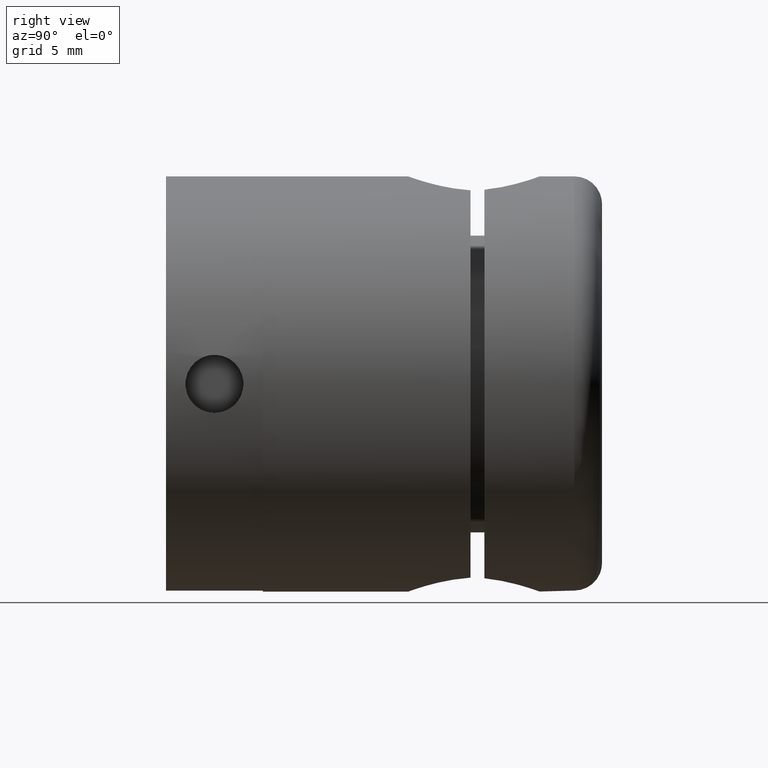
[diagram: clean part render]
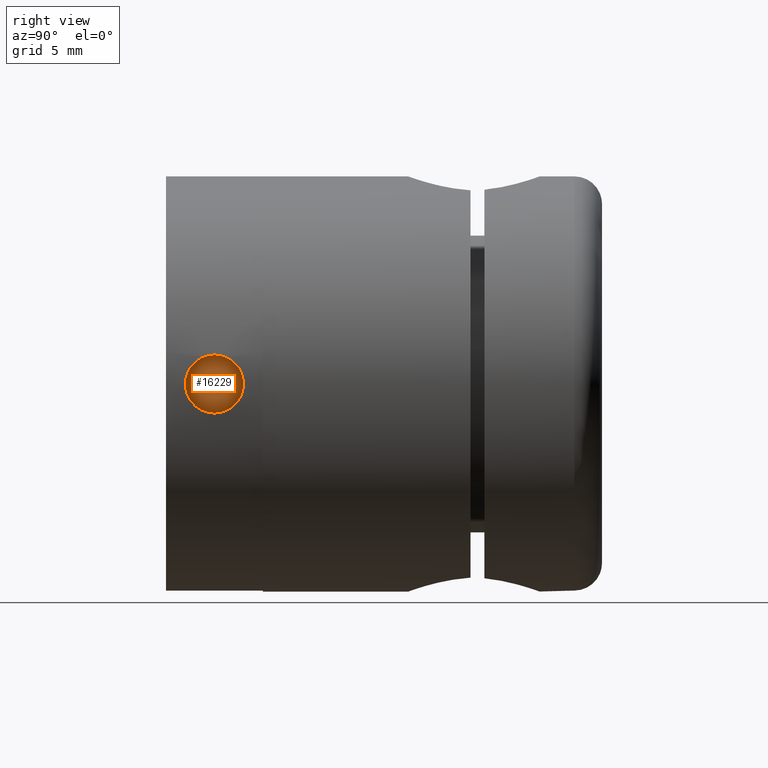
[diagram: same view with one face highlighted and labeled with its STEP entity id]
A machine part, right view. The second image highlights one B-rep face of the part: STEP entity #16229.
In plain terms, the highlighted planar face has unit normal (1, 0, 0).
Its self-contained STEP definition (entity closure, byte-faithful):
#418 = VERTEX_POINT ( 'NONE', #5107 ) ;
#727 = DIRECTION ( 'NONE',  ( 1.000000000000000000, 0.0000000000000000000, 0.0000000000000000000 ) ) ;
#1033 = AXIS2_PLACEMENT_3D ( 'NONE', #6137, #727, #12833 ) ;
#3866 = CARTESIAN_POINT ( 'NONE',  ( 11.00000000000000000, 3.500000000000000000, 0.0000000000000000000 ) ) ;
#5107 = CARTESIAN_POINT ( 'NONE',  ( 11.00000000000000000, 3.500000000000000000, -2.100000000000000100 ) ) ;
#5654 = ORIENTED_EDGE ( 'NONE', *, *, #7966, .T. ) ;
#6137 = CARTESIAN_POINT ( 'NONE',  ( 11.00000000000000000, 3.500000000000000000, 0.0000000000000000000 ) ) ;
#7966 = EDGE_CURVE ( 'NONE', #418, #418, #9197, .T. ) ;
#9180 = DIRECTION ( 'NONE',  ( 0.0000000000000000000, 0.0000000000000000000, -1.000000000000000000 ) ) ;
#9197 = CIRCLE ( 'NONE', #1033, 2.100000000000000100 ) ;
#10241 = EDGE_LOOP ( 'NONE', ( #5654 ) ) ;
#10328 = AXIS2_PLACEMENT_3D ( 'NONE', #3866, #14445, #9180 ) ;
#10404 = FACE_OUTER_BOUND ( 'NONE', #10241, .T. ) ;
#12833 = DIRECTION ( 'NONE',  ( 0.0000000000000000000, 0.0000000000000000000, -1.000000000000000000 ) ) ;
#14445 = DIRECTION ( 'NONE',  ( 1.000000000000000000, 0.0000000000000000000, 0.0000000000000000000 ) ) ;
#14552 = PLANE ( 'NONE',  #10328 ) ;
#16229 = ADVANCED_FACE ( 'NONE', ( #10404 ), #14552, .T. ) ;